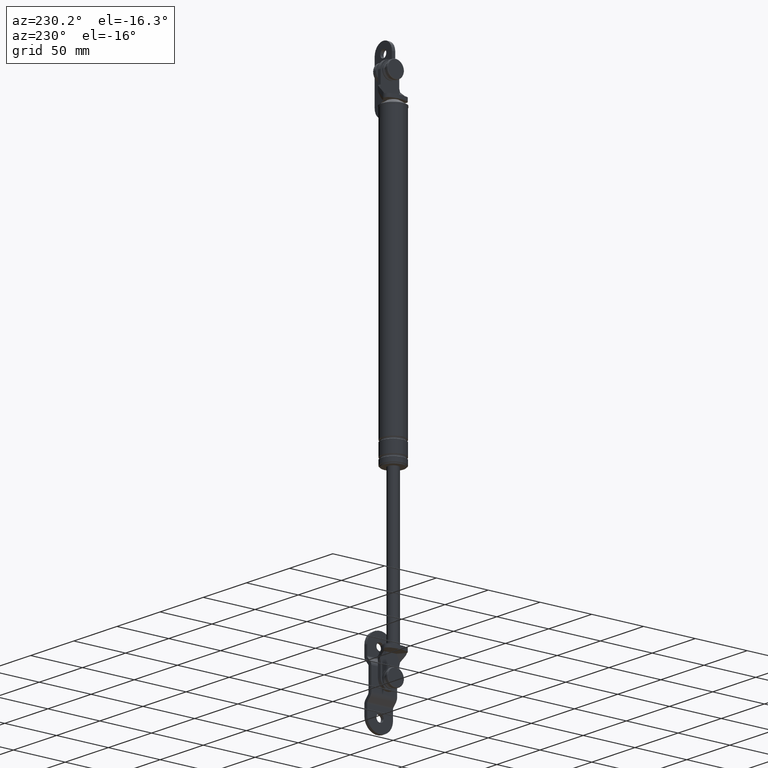
[diagram: clean part render]
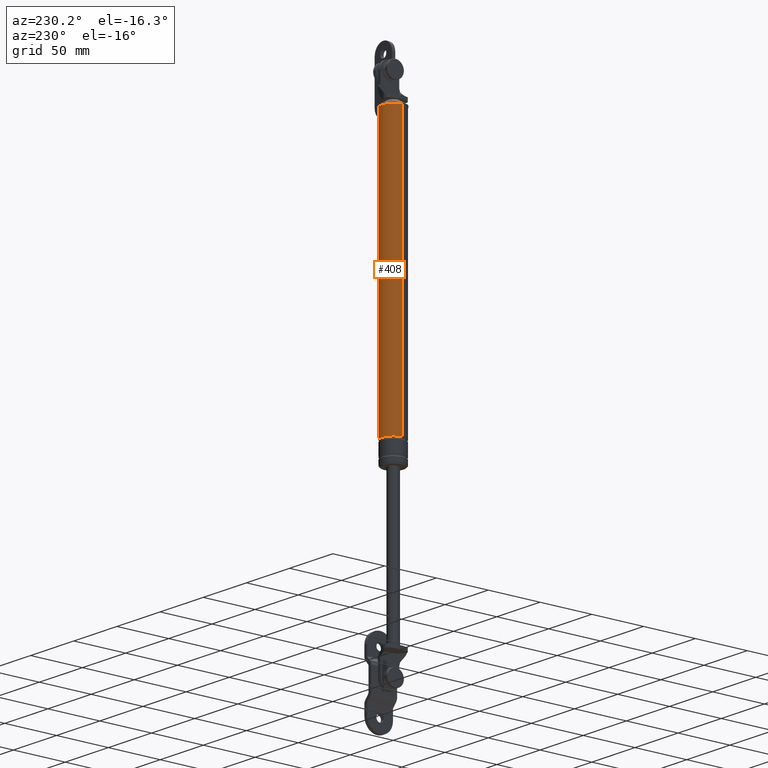
[diagram: same view with one face highlighted and labeled with its STEP entity id]
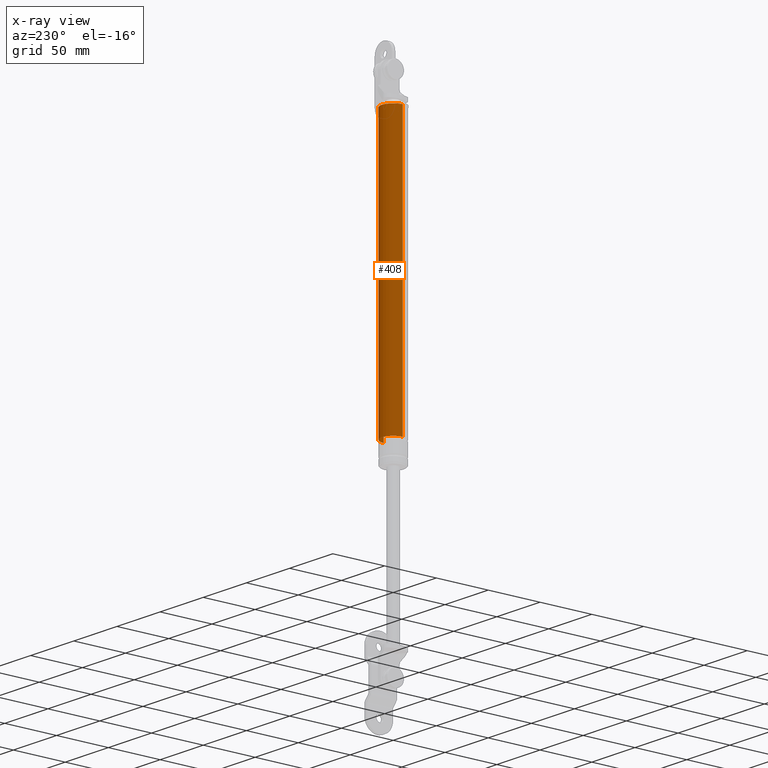
[diagram: x-ray of the same camera — body ghosted, the highlighted face saturated]
A machine part, auxiliary view. The second image highlights one B-rep face of the part: STEP entity #408.
The next image is the same camera in x-ray: the body ghosted, the highlighted face saturated — about 0% of this face is hidden behind the body in this view.
In plain terms, the highlighted cylindrical surface (edge-blend (fillet) strip) has radius 11 mm, axis along (0, 0, 1).
Its self-contained STEP definition (entity closure, byte-faithful):
#408=ADVANCED_FACE('',(#1774),#1773,.T.);
#1773=CYLINDRICAL_SURFACE('',#3064,1.09999999738E+001);
#1774=FACE_OUTER_BOUND('',#3065,.T.);
#3061=CARTESIAN_POINT('',(-2.61800288115E-008,0.00000000000E+000,0.00000000000E+000));
#3062=DIRECTION('',(-0.00000000000E+000,-0.00000000000E+000,1.00000000000E+000));
#3063=DIRECTION('',(1.00000000000E+000,-0.00000000000E+000,-0.00000000000E+000));
#3064=AXIS2_PLACEMENT_3D('',#3061,#3062,#3063);
#3065=EDGE_LOOP('',(#4078,#4079,#4080,#4081));
#4078=ORIENTED_EDGE('',*,*,#4613,.F.);
#4079=ORIENTED_EDGE('',*,*,#4620,.F.);
#4080=ORIENTED_EDGE('',*,*,#4621,.F.);
#4081=ORIENTED_EDGE('',*,*,#4622,.T.);
#4613=EDGE_CURVE('',#6888,#6887,#6895,.T.);
#4620=EDGE_CURVE('',#6941,#6888,#6942,.T.);
#4621=EDGE_CURVE('',#6948,#6941,#6949,.T.);
#4622=EDGE_CURVE('',#6948,#6887,#6955,.T.);
#6887=VERTEX_POINT('',#8919);
#6888=VERTEX_POINT('',#8920);
#6895=CIRCLE('',#8928,1.09999999738E+001);
#6941=VERTEX_POINT('',#8953);
#6942=(BOUNDED_CURVE() B_SPLINE_CURVE(1,(#8954,#8955),.UNSPECIFIED.,.F.,.F.) B_SPLINE_CURVE_WITH_KNOTS((2,2),(3.61141205768E-002,9.63885879420E-001),.UNSPECIFIED.) CURVE() GEOMETRIC_REPRESENTATION_ITEM() RATIONAL_B_SPLINE_CURVE((1.00000000000E+000,1.00000000000E+000)) REPRESENTATION_ITEM('') );
#6948=VERTEX_POINT('',#8956);
#6949=CIRCLE('',#8960,1.10000000524E+001);
#6955=(BOUNDED_CURVE() B_SPLINE_CURVE(1,(#8961,#8962),.UNSPECIFIED.,.F.,.F.) B_SPLINE_CURVE_WITH_KNOTS((2,2),(3.61141206212E-002,9.63885879379E-001),.UNSPECIFIED.) CURVE() GEOMETRIC_REPRESENTATION_ITEM() RATIONAL_B_SPLINE_CURVE((7.50000000000E-001,7.50000000000E-001)) REPRESENTATION_ITEM('') );
#8919=CARTESIAN_POINT('',(-1.10000000000E+001,0.00000000000E+000,8.38999850000E+001));
#8920=CARTESIAN_POINT('',(1.09999999476E+001,1.18423789293E-015,8.38999850000E+001));
#8925=CARTESIAN_POINT('',(-2.61800288115E-008,0.00000000000E+000,8.38999850000E+001));
#8926=DIRECTION('',(0.00000000000E+000,0.00000000000E+000,1.00000000000E+000));
#8927=DIRECTION('',(-1.00000000000E+000,-1.22460635382E-016,0.00000000000E+000));
#8928=AXIS2_PLACEMENT_3D('',#8925,#8926,#8927);
#8953=CARTESIAN_POINT('',(1.10000000524E+001,-5.98040135931E-014,-1.73000015000E+002));
#8954=CARTESIAN_POINT('',(1.09999999476E+001,0.00000000000E+000,-1.73000015012E+002));
#8955=CARTESIAN_POINT('',(1.09999999476E+001,0.00000000000E+000,8.38999850113E+001));
#8956=CARTESIAN_POINT('',(-1.10000000524E+001,-5.96163199979E-014,-1.73000015000E+002));
#8957=CARTESIAN_POINT('',(0.00000000000E+000,-5.96163199979E-014,-1.73000015000E+002));
#8958=DIRECTION('',(-0.00000000000E+000,0.00000000000E+000,-1.00000000000E+000));
#8959=DIRECTION('',(-1.00000000000E+000,-1.22460635382E-016,0.00000000000E+000));
#8960=AXIS2_PLACEMENT_3D('',#8957,#8958,#8959);
#8961=CARTESIAN_POINT('',(-1.10000000000E+001,0.00000000000E+000,-1.73000015000E+002));
#8962=CARTESIAN_POINT('',(-1.10000000000E+001,0.00000000000E+000,8.38999850000E+001));